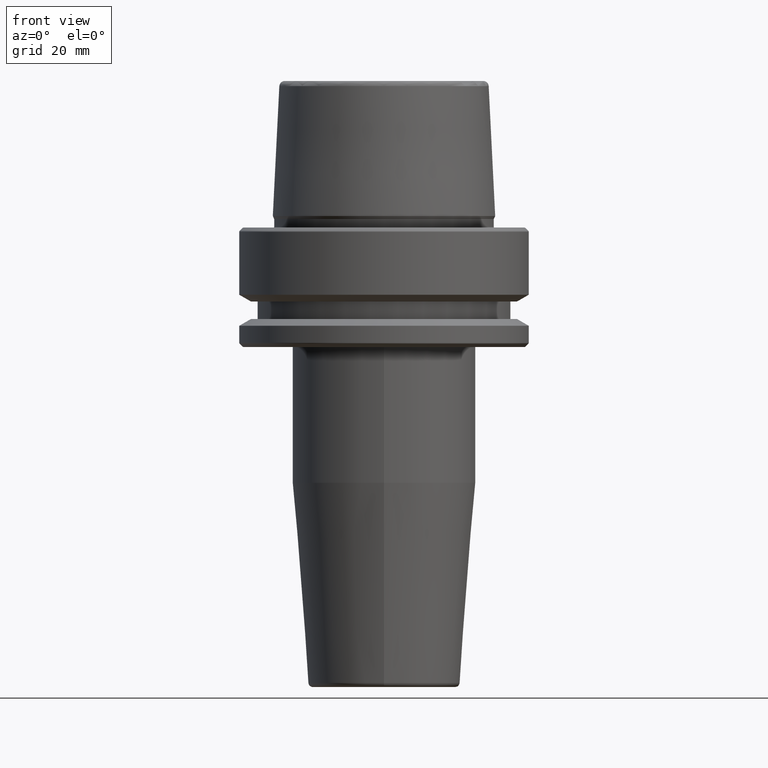
[diagram: clean part render]
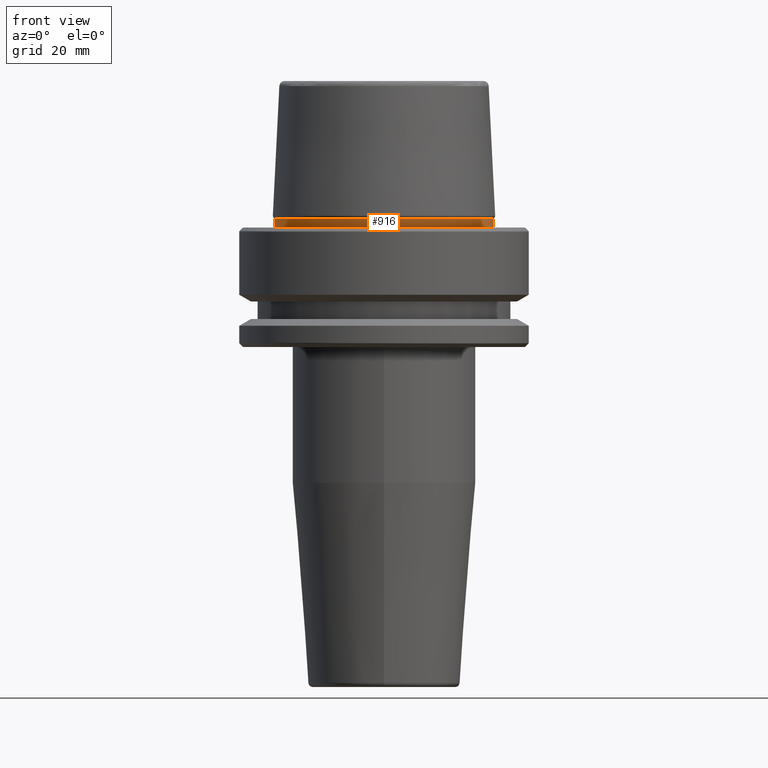
[diagram: same view with one face highlighted and labeled with its STEP entity id]
A machine part, front view. The second image highlights one B-rep face of the part: STEP entity #916.
In plain terms, the highlighted cylindrical surface (partial cylindrical patch) has radius 23.89 mm, axis along (-0, -0, 1).
Its self-contained STEP definition (entity closure, byte-faithful):
#13 = FACE_OUTER_BOUND ( 'NONE', #760, .T. ) ;
#31 = CARTESIAN_POINT ( 'NONE',  ( 23.89000000000000100, 0.0000000000000000000, 78.96908074195309300 ) ) ;
#40 = LINE ( 'NONE', #31, #1047 ) ;
#52 = DIRECTION ( 'NONE',  ( -0.0000000000000000000, -0.0000000000000000000, 1.000000000000000000 ) ) ;
#136 = ORIENTED_EDGE ( 'NONE', *, *, #339, .F. ) ;
#150 = AXIS2_PLACEMENT_3D ( 'NONE', #187, #779, #587 ) ;
#164 = CARTESIAN_POINT ( 'NONE',  ( 23.89000000000000400, 0.0000000000000000000, 0.1312552021302954000 ) ) ;
#171 = LINE ( 'NONE', #409, #921 ) ;
#187 = CARTESIAN_POINT ( 'NONE',  ( 0.0000000000000000000, 0.0000000000000000000, 78.96908074195309300 ) ) ;
#190 = ORIENTED_EDGE ( 'NONE', *, *, #386, .T. ) ;
#265 = AXIS2_PLACEMENT_3D ( 'NONE', #897, #303, #997 ) ;
#303 = DIRECTION ( 'NONE',  ( -0.0000000000000000000, -0.0000000000000000000, 1.000000000000000000 ) ) ;
#309 = DIRECTION ( 'NONE',  ( -0.0000000000000000000, -0.0000000000000000000, 1.000000000000000000 ) ) ;
#313 = CIRCLE ( 'NONE', #265, 23.89000000000000100 ) ;
#339 = EDGE_CURVE ( 'NONE', #523, #1121, #313, .T. ) ;
#386 = EDGE_CURVE ( 'NONE', #469, #1121, #40, .T. ) ;
#409 = CARTESIAN_POINT ( 'NONE',  ( -23.89000000000000100, 2.925681203163027000E-015, 78.96908074195309300 ) ) ;
#417 = ORIENTED_EDGE ( 'NONE', *, *, #1009, .F. ) ;
#469 = VERTEX_POINT ( 'NONE', #164 ) ;
#493 = CYLINDRICAL_SURFACE ( 'NONE', #150, 23.89000000000000100 ) ;
#523 = VERTEX_POINT ( 'NONE', #1159 ) ;
#539 = ORIENTED_EDGE ( 'NONE', *, *, #1051, .T. ) ;
#550 = VERTEX_POINT ( 'NONE', #658 ) ;
#587 = DIRECTION ( 'NONE',  ( 1.000000000000000000, 0.0000000000000000000, 0.0000000000000000000 ) ) ;
#622 = CARTESIAN_POINT ( 'NONE',  ( 0.0000000000000000000, 0.0000000000000000000, 0.1312552021302954000 ) ) ;
#658 = CARTESIAN_POINT ( 'NONE',  ( -23.89000000000000400, 2.961613815265650600E-015, 0.1312552021302954000 ) ) ;
#718 = CARTESIAN_POINT ( 'NONE',  ( 23.89000000000000100, 0.0000000000000000000, 1.845119734979375100 ) ) ;
#720 = DIRECTION ( 'NONE',  ( 1.000000000000000000, 0.0000000000000000000, 0.0000000000000000000 ) ) ;
#760 = EDGE_LOOP ( 'NONE', ( #417, #539, #190, #136 ) ) ;
#779 = DIRECTION ( 'NONE',  ( -0.0000000000000000000, -0.0000000000000000000, 1.000000000000000000 ) ) ;
#863 = CIRCLE ( 'NONE', #940, 23.89000000000000400 ) ;
#897 = CARTESIAN_POINT ( 'NONE',  ( 0.0000000000000000000, 0.0000000000000000000, 1.845119734979375100 ) ) ;
#916 = ADVANCED_FACE ( 'NONE', ( #13 ), #493, .T. ) ;
#921 = VECTOR ( 'NONE', #1109, 1000.000000000000000 ) ;
#940 = AXIS2_PLACEMENT_3D ( 'NONE', #622, #52, #720 ) ;
#997 = DIRECTION ( 'NONE',  ( 1.000000000000000000, 0.0000000000000000000, 0.0000000000000000000 ) ) ;
#1009 = EDGE_CURVE ( 'NONE', #550, #523, #171, .T. ) ;
#1047 = VECTOR ( 'NONE', #309, 1000.000000000000000 ) ;
#1051 = EDGE_CURVE ( 'NONE', #550, #469, #863, .T. ) ;
#1109 = DIRECTION ( 'NONE',  ( -0.0000000000000000000, -0.0000000000000000000, 1.000000000000000000 ) ) ;
#1121 = VERTEX_POINT ( 'NONE', #718 ) ;
#1159 = CARTESIAN_POINT ( 'NONE',  ( -23.89000000000000100, 2.944380070784114200E-015, 1.845119734979375100 ) ) ;